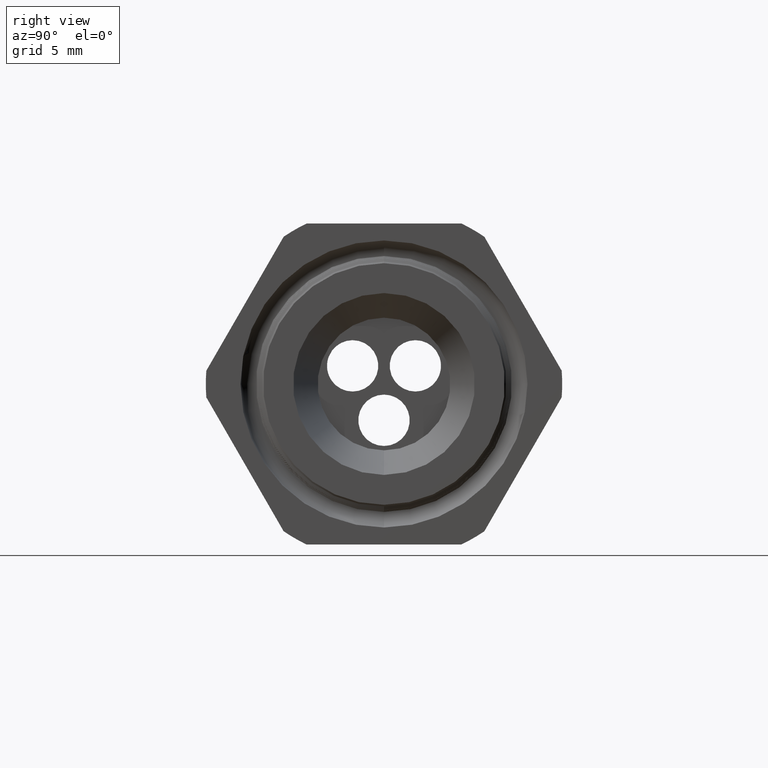
[diagram: clean part render]
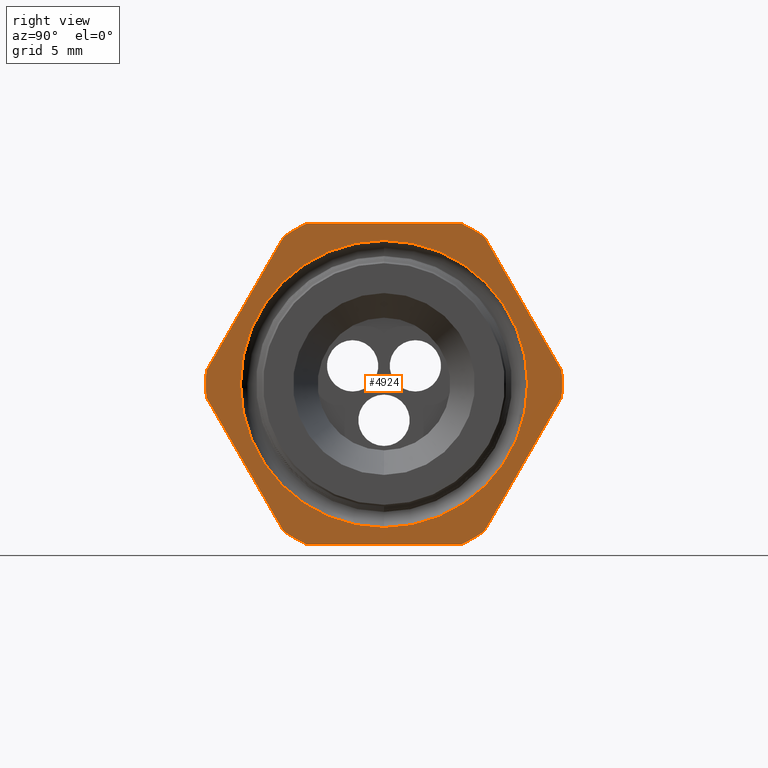
[diagram: same view with one face highlighted and labeled with its STEP entity id]
A machine part, right view. The second image highlights one B-rep face of the part: STEP entity #4924.
In plain terms, the highlighted planar face has unit normal (1, 0, 0).
Its self-contained STEP definition (entity closure, byte-faithful):
#857 = VERTEX_POINT ( 'NONE', #2735 ) ;
#859 = EDGE_CURVE ( 'NONE', #857, #860, #2734, .T. ) ;
#860 = VERTEX_POINT ( 'NONE', #2729 ) ;
#2729 = CARTESIAN_POINT ( 'NONE',  ( -0.3100000000000000000, 0.0000000000000000000, -0.3352160785688592700 ) ) ;
#2730 = DIRECTION ( 'NONE',  ( 0.0000000000000000000, 0.0000000000000000000, -1.000000000000000000 ) ) ;
#2731 = DIRECTION ( 'NONE',  ( 1.000000000000000000, 0.0000000000000000000, 0.0000000000000000000 ) ) ;
#2732 = CARTESIAN_POINT ( 'NONE',  ( -0.3100000000000000000, 0.0000000000000000000, 0.0000000000000000000 ) ) ;
#2733 = AXIS2_PLACEMENT_3D ( 'NONE', #2732, #2731, #2730 ) ;
#2734 = CIRCLE ( 'NONE', #2733, 0.3352160785688592700 ) ;
#2735 = CARTESIAN_POINT ( 'NONE',  ( -0.3100000000000000000, 4.105212976420811500E-017, 0.3352160785688592700 ) ) ;
#3789 = CARTESIAN_POINT ( 'NONE',  ( -0.3100000000000000000, 0.7500000000000001100, 0.3749999999999999400 ) ) ;
#4035 = DIRECTION ( 'NONE',  ( 0.0000000000000000000, -1.000000000000000000, 0.0000000000000000000 ) ) ;
#4036 = VECTOR ( 'NONE', #4035, 39.37007874015748100 ) ;
#4038 = CARTESIAN_POINT ( 'NONE',  ( -0.3100000000000000000, -0.1806628420566886700, 0.3749999999999999400 ) ) ;
#4274 = LINE ( 'NONE', #3789, #4036 ) ;
#4276 = CARTESIAN_POINT ( 'NONE',  ( -0.3100000000000000000, 0.1806628420566887000, 0.3749999999999999400 ) ) ;
#4277 = DIRECTION ( 'NONE',  ( 0.0000000000000000000, 0.0000000000000000000, -1.000000000000000000 ) ) ;
#4278 = DIRECTION ( 'NONE',  ( 1.000000000000000000, 0.0000000000000000000, 0.0000000000000000000 ) ) ;
#4279 = CARTESIAN_POINT ( 'NONE',  ( -0.3100000000000000000, 0.0000000000000000000, 0.0000000000000000000 ) ) ;
#4280 = AXIS2_PLACEMENT_3D ( 'NONE', #4279, #4278, #4277 ) ;
#4281 = CIRCLE ( 'NONE', #4280, 0.4162499999999999500 ) ;
#4282 = CARTESIAN_POINT ( 'NONE',  ( -0.3100000000000000000, 0.2344281053908206000, 0.3439586107409877100 ) ) ;
#4307 = DIRECTION ( 'NONE',  ( 0.0000000000000000000, 0.0000000000000000000, -1.000000000000000000 ) ) ;
#4308 = DIRECTION ( 'NONE',  ( 1.000000000000000000, 0.0000000000000000000, 0.0000000000000000000 ) ) ;
#4309 = CARTESIAN_POINT ( 'NONE',  ( -0.3100000000000000000, 0.0000000000000000000, 0.0000000000000000000 ) ) ;
#4310 = AXIS2_PLACEMENT_3D ( 'NONE', #4309, #4308, #4307 ) ;
#4311 = CIRCLE ( 'NONE', #4310, 0.3352160785688592700 ) ;
#4312 = DIRECTION ( 'NONE',  ( 0.0000000000000000000, 0.0000000000000000000, -1.000000000000000000 ) ) ;
#4313 = DIRECTION ( 'NONE',  ( 1.000000000000000000, 0.0000000000000000000, 0.0000000000000000000 ) ) ;
#4314 = CARTESIAN_POINT ( 'NONE',  ( -0.3100000000000000000, 0.7500000000000001100, 0.0000000000000000000 ) ) ;
#4315 = AXIS2_PLACEMENT_3D ( 'NONE', #4314, #4313, #4312 ) ;
#4316 = PLANE ( 'NONE',  #4315 ) ;
#4317 = FACE_OUTER_BOUND ( 'NONE', #4929, .T. ) ;
#4318 = FACE_BOUND ( 'NONE', #4925, .T. ) ;
#4330 = CARTESIAN_POINT ( 'NONE',  ( -0.3100000000000000000, -0.2344281053908205100, 0.3439586107409878200 ) ) ;
#4331 = DIRECTION ( 'NONE',  ( 0.0000000000000000000, 0.0000000000000000000, -1.000000000000000000 ) ) ;
#4332 = DIRECTION ( 'NONE',  ( 1.000000000000000000, 0.0000000000000000000, 0.0000000000000000000 ) ) ;
#4333 = CARTESIAN_POINT ( 'NONE',  ( -0.3100000000000000000, 0.0000000000000000000, 0.0000000000000000000 ) ) ;
#4334 = AXIS2_PLACEMENT_3D ( 'NONE', #4333, #4332, #4331 ) ;
#4335 = CIRCLE ( 'NONE', #4334, 0.4162500000000000100 ) ;
#4359 = CARTESIAN_POINT ( 'NONE',  ( -0.3100000000000000000, 0.4150909474475088000, -0.03104138925901222000 ) ) ;
#4360 = CARTESIAN_POINT ( 'NONE',  ( -0.3100000000000000000, 0.2344281053908202900, -0.3439586107409879900 ) ) ;
#4361 = DIRECTION ( 'NONE',  ( 0.0000000000000000000, 0.5000000000000000000, 0.8660254037844386000 ) ) ;
#4362 = VECTOR ( 'NONE', #4361, 39.37007874015748900 ) ;
#4363 = CARTESIAN_POINT ( 'NONE',  ( -0.3100000000000000000, 0.5122595264191646100, 0.1372595264191644700 ) ) ;
#4364 = LINE ( 'NONE', #4363, #4362 ) ;
#4405 = DIRECTION ( 'NONE',  ( 0.0000000000000000000, 0.0000000000000000000, -1.000000000000000000 ) ) ;
#4406 = DIRECTION ( 'NONE',  ( 1.000000000000000000, 0.0000000000000000000, 0.0000000000000000000 ) ) ;
#4407 = CARTESIAN_POINT ( 'NONE',  ( -0.3100000000000000000, 0.0000000000000000000, 0.0000000000000000000 ) ) ;
#4408 = AXIS2_PLACEMENT_3D ( 'NONE', #4407, #4406, #4405 ) ;
#4409 = CIRCLE ( 'NONE', #4408, 0.4162500000000000100 ) ;
#4411 = CARTESIAN_POINT ( 'NONE',  ( -0.3100000000000000000, 0.1806628420566884800, -0.3750000000000001100 ) ) ;
#4424 = CARTESIAN_POINT ( 'NONE',  ( -0.3100000000000000000, -0.1806628420566883900, -0.3750000000000001100 ) ) ;
#4425 = DIRECTION ( 'NONE',  ( 0.0000000000000000000, 0.0000000000000000000, -1.000000000000000000 ) ) ;
#4426 = DIRECTION ( 'NONE',  ( 1.000000000000000000, 0.0000000000000000000, 0.0000000000000000000 ) ) ;
#4427 = CARTESIAN_POINT ( 'NONE',  ( -0.3100000000000000000, 0.0000000000000000000, 0.0000000000000000000 ) ) ;
#4428 = AXIS2_PLACEMENT_3D ( 'NONE', #4427, #4426, #4425 ) ;
#4429 = CIRCLE ( 'NONE', #4428, 0.4162500000000000100 ) ;
#4430 = CARTESIAN_POINT ( 'NONE',  ( -0.3100000000000000000, -0.2344281053908202100, -0.3439586107409880500 ) ) ;
#4431 = DIRECTION ( 'NONE',  ( 0.0000000000000000000, 0.5000000000000002200, -0.8660254037844384900 ) ) ;
#4432 = VECTOR ( 'NONE', #4431, 39.37007874015748900 ) ;
#4433 = CARTESIAN_POINT ( 'NONE',  ( -0.3100000000000000000, -0.1372595264191642800, -0.5122595264191648300 ) ) ;
#4434 = LINE ( 'NONE', #4433, #4432 ) ;
#4435 = CARTESIAN_POINT ( 'NONE',  ( -0.3100000000000000000, -0.4150909474475088000, -0.03104138925901237000 ) ) ;
#4436 = DIRECTION ( 'NONE',  ( 0.0000000000000000000, 0.0000000000000000000, -1.000000000000000000 ) ) ;
#4437 = DIRECTION ( 'NONE',  ( 1.000000000000000000, 0.0000000000000000000, 0.0000000000000000000 ) ) ;
#4438 = CARTESIAN_POINT ( 'NONE',  ( -0.3100000000000000000, 0.0000000000000000000, 0.0000000000000000000 ) ) ;
#4439 = AXIS2_PLACEMENT_3D ( 'NONE', #4438, #4437, #4436 ) ;
#4440 = CIRCLE ( 'NONE', #4439, 0.4162500000000000100 ) ;
#4441 = CARTESIAN_POINT ( 'NONE',  ( -0.3100000000000000000, -0.4150909474475088000, 0.03104138925901241800 ) ) ;
#4442 = DIRECTION ( 'NONE',  ( 0.0000000000000000000, -0.4999999999999998300, -0.8660254037844386000 ) ) ;
#4443 = VECTOR ( 'NONE', #4442, 39.37007874015748900 ) ;
#4444 = CARTESIAN_POINT ( 'NONE',  ( -0.3100000000000000000, -0.1372595264191648300, 0.5122595264191645000 ) ) ;
#4445 = LINE ( 'NONE', #4444, #4443 ) ;
#4474 = DIRECTION ( 'NONE',  ( 0.0000000000000000000, -0.4999999999999998300, 0.8660254037844386000 ) ) ;
#4475 = VECTOR ( 'NONE', #4474, 39.37007874015748900 ) ;
#4476 = CARTESIAN_POINT ( 'NONE',  ( -0.3100000000000000000, 0.5122595264191646100, -0.1372595264191644500 ) ) ;
#4477 = LINE ( 'NONE', #4476, #4475 ) ;
#4478 = CARTESIAN_POINT ( 'NONE',  ( -0.3100000000000000000, 0.4150909474475088000, 0.03104138925901233200 ) ) ;
#4479 = DIRECTION ( 'NONE',  ( 0.0000000000000000000, 0.0000000000000000000, -1.000000000000000000 ) ) ;
#4480 = DIRECTION ( 'NONE',  ( 1.000000000000000000, 0.0000000000000000000, 0.0000000000000000000 ) ) ;
#4481 = CARTESIAN_POINT ( 'NONE',  ( -0.3100000000000000000, 0.0000000000000000000, 0.0000000000000000000 ) ) ;
#4482 = AXIS2_PLACEMENT_3D ( 'NONE', #4481, #4480, #4479 ) ;
#4483 = CIRCLE ( 'NONE', #4482, 0.4162500000000000100 ) ;
#4484 = DIRECTION ( 'NONE',  ( 0.0000000000000000000, 1.000000000000000000, 0.0000000000000000000 ) ) ;
#4485 = VECTOR ( 'NONE', #4484, 39.37007874015748100 ) ;
#4486 = CARTESIAN_POINT ( 'NONE',  ( -0.3100000000000000000, 0.7500000000000001100, -0.3750000000000001100 ) ) ;
#4487 = LINE ( 'NONE', #4486, #4485 ) ;
#4909 = VERTEX_POINT ( 'NONE', #4282 ) ;
#4910 = ORIENTED_EDGE ( 'NONE', *, *, #4911, .T. ) ;
#4911 = EDGE_CURVE ( 'NONE', #4909, #4912, #4281, .T. ) ;
#4912 = VERTEX_POINT ( 'NONE', #4276 ) ;
#4913 = ORIENTED_EDGE ( 'NONE', *, *, #4914, .T. ) ;
#4914 = EDGE_CURVE ( 'NONE', #4912, #4915, #4274, .T. ) ;
#4915 = VERTEX_POINT ( 'NONE', #4038 ) ;
#4916 = ORIENTED_EDGE ( 'NONE', *, *, #4917, .T. ) ;
#4917 = EDGE_CURVE ( 'NONE', #4915, #4918, #4335, .T. ) ;
#4918 = VERTEX_POINT ( 'NONE', #4330 ) ;
#4924 = ADVANCED_FACE ( 'NONE', ( #4318, #4317 ), #4316, .T. ) ;
#4925 = EDGE_LOOP ( 'NONE', ( #4926, #4928 ) ) ;
#4926 = ORIENTED_EDGE ( 'NONE', *, *, #4927, .F. ) ;
#4927 = EDGE_CURVE ( 'NONE', #860, #857, #4311, .T. ) ;
#4928 = ORIENTED_EDGE ( 'NONE', *, *, #859, .F. ) ;
#4929 = EDGE_LOOP ( 'NONE', ( #4930, #4989, #4992, #4910, #4913, #4916, #4975, #4978, #4981, #4984, #4987, #4963 ) ) ;
#4930 = ORIENTED_EDGE ( 'NONE', *, *, #4931, .T. ) ;
#4931 = EDGE_CURVE ( 'NONE', #4932, #4933, #4364, .T. ) ;
#4932 = VERTEX_POINT ( 'NONE', #4360 ) ;
#4933 = VERTEX_POINT ( 'NONE', #4359 ) ;
#4962 = VERTEX_POINT ( 'NONE', #4411 ) ;
#4963 = ORIENTED_EDGE ( 'NONE', *, *, #4964, .T. ) ;
#4964 = EDGE_CURVE ( 'NONE', #4962, #4932, #4409, .T. ) ;
#4975 = ORIENTED_EDGE ( 'NONE', *, *, #4976, .T. ) ;
#4976 = EDGE_CURVE ( 'NONE', #4918, #4977, #4445, .T. ) ;
#4977 = VERTEX_POINT ( 'NONE', #4441 ) ;
#4978 = ORIENTED_EDGE ( 'NONE', *, *, #4979, .T. ) ;
#4979 = EDGE_CURVE ( 'NONE', #4977, #4980, #4440, .T. ) ;
#4980 = VERTEX_POINT ( 'NONE', #4435 ) ;
#4981 = ORIENTED_EDGE ( 'NONE', *, *, #4982, .T. ) ;
#4982 = EDGE_CURVE ( 'NONE', #4980, #4983, #4434, .T. ) ;
#4983 = VERTEX_POINT ( 'NONE', #4430 ) ;
#4984 = ORIENTED_EDGE ( 'NONE', *, *, #4985, .T. ) ;
#4985 = EDGE_CURVE ( 'NONE', #4983, #4986, #4429, .T. ) ;
#4986 = VERTEX_POINT ( 'NONE', #4424 ) ;
#4987 = ORIENTED_EDGE ( 'NONE', *, *, #4988, .T. ) ;
#4988 = EDGE_CURVE ( 'NONE', #4986, #4962, #4487, .T. ) ;
#4989 = ORIENTED_EDGE ( 'NONE', *, *, #4990, .T. ) ;
#4990 = EDGE_CURVE ( 'NONE', #4933, #4991, #4483, .T. ) ;
#4991 = VERTEX_POINT ( 'NONE', #4478 ) ;
#4992 = ORIENTED_EDGE ( 'NONE', *, *, #4993, .T. ) ;
#4993 = EDGE_CURVE ( 'NONE', #4991, #4909, #4477, .T. ) ;